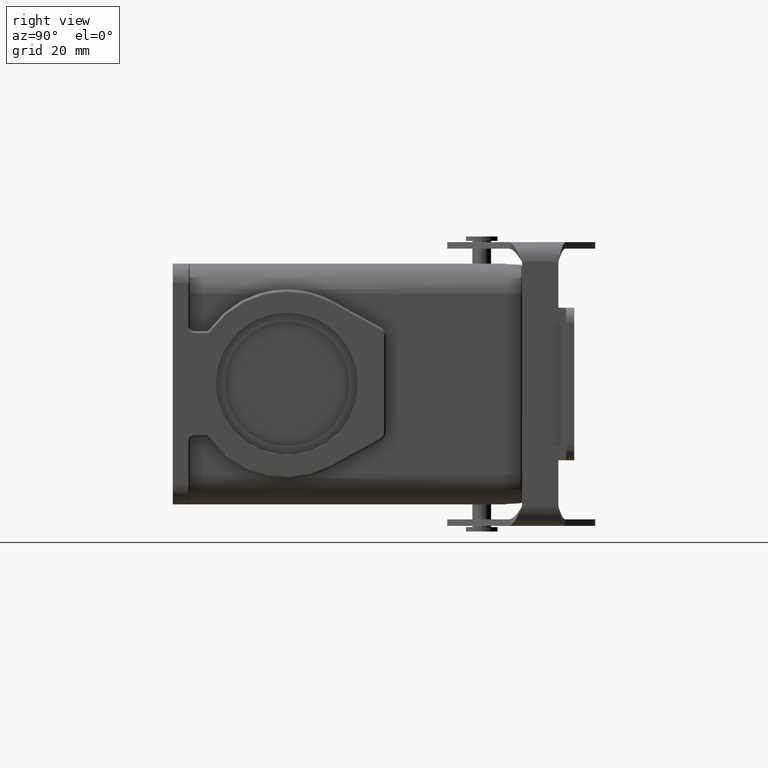
[diagram: clean part render]
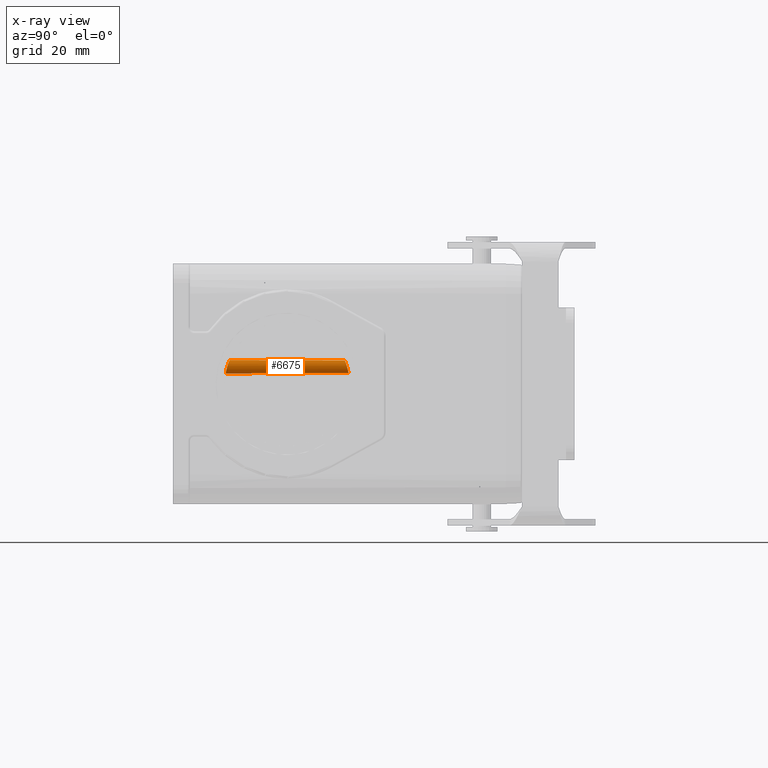
[diagram: x-ray — body ghosted, one internal face saturated and labeled with its STEP entity id]
A machine part, right view, then the same camera in x-ray: the body is ghosted and one INTERNAL B-rep face — a face not visible from any outside direction — is saturated and labeled: STEP entity #6675.
In plain terms, the highlighted cylindrical surface (edge-blend (fillet) strip) has radius 1.75 mm, axis along (0, 1, 0).
Its self-contained STEP definition (entity closure, byte-faithful):
#6610=CARTESIAN_POINT('',(3.390368962511E1,3.990224071637E1,2.501385619492E0));
#6611=CARTESIAN_POINT('',(3.387043298421E1,3.037495358937E1,2.481331306828E0));
#6612=CARTESIAN_POINT('',(3.383717633303E1,2.084766351894E1,2.462782505186E0));
#6613=CARTESIAN_POINT('',(3.380391967265E1,1.132037081110E1,2.445582694407E0));
#6615=CARTESIAN_POINT('',(3.380705215340E1,1.221775679828E1,5.552793232112E0));
#6616=CARTESIAN_POINT('',(3.383825683962E1,2.115720459656E1,5.536574840193E0));
#6617=CARTESIAN_POINT('',(3.386946151770E1,3.009665006516E1,5.519164658706E0));
#6618=CARTESIAN_POINT('',(3.390066618677E1,3.903609295137E1,5.500433410721E0));
#6620=CARTESIAN_POINT('',(3.390368962511E1,3.990224071604E1,2.501385619492E0));
#6621=CARTESIAN_POINT('',(3.404855174155E1,3.988643999587E1,2.588739907161E0));
#6622=CARTESIAN_POINT('',(3.430395586856E1,3.984766177714E1,2.796801594860E0));
#6623=CARTESIAN_POINT('',(3.459965853149E1,3.975593872261E1,3.228750141076E0));
#6624=CARTESIAN_POINT('',(3.475421615335E1,3.963338019320E1,3.725461822247E0));
#6625=CARTESIAN_POINT('',(3.475823088190E1,3.948280596514E1,4.252463425080E0));
#6626=CARTESIAN_POINT('',(3.460560981715E1,3.931640775394E1,4.761598070856E0));
#6627=CARTESIAN_POINT('',(3.430558419343E1,3.915505798067E1,5.202360484023E0));
#6628=CARTESIAN_POINT('',(3.404744245160E1,3.907169236825E1,5.412327922118E0));
#6629=CARTESIAN_POINT('',(3.390066618677E1,3.903609295100E1,5.500433410714E0));
#6631=CARTESIAN_POINT('',(3.380705215336E1,1.221775679828E1,5.552793232111E0));
#6632=CARTESIAN_POINT('',(3.396848749999E1,1.218241998299E1,5.468888471684E0));
#6633=CARTESIAN_POINT('',(3.425306640846E1,1.209699704436E1,5.261409813050E0));
#6634=CARTESIAN_POINT('',(3.458925604598E1,1.192487093962E1,4.803265067588E0));
#6635=CARTESIAN_POINT('',(3.476003387306E1,1.174612673565E1,4.263754626506E0));
#6636=CARTESIAN_POINT('',(3.475389993957E1,1.158618631749E1,3.702873979738E0));
#6637=CARTESIAN_POINT('',(3.457807329941E1,1.145947255948E1,3.178101966356E0));
#6638=CARTESIAN_POINT('',(3.424499565020E1,1.136901251215E1,2.731752164729E0));
#6639=CARTESIAN_POINT('',(3.396312494390E1,1.133390074588E1,2.527921104509E0));
#6640=CARTESIAN_POINT('',(3.380391967260E1,1.132037081110E1,2.445582694405E0));
#6642=VERTEX_POINT('',#6631);
#6643=VERTEX_POINT('',#6640);
#6644=VERTEX_POINT('',#6620);
#6645=VERTEX_POINT('',#6629);
#6662=CARTESIAN_POINT('',(3.3E1,1.074873341298E1,4.E0));
#6663=DIRECTION('',(0.E0,1.E0,0.E0));
#6664=DIRECTION('',(-1.E0,0.E0,0.E0));
#6665=AXIS2_PLACEMENT_3D('',#6662,#6663,#6664);
#6666=CYLINDRICAL_SURFACE('',#6665,1.75E0);
#6668=ORIENTED_EDGE('',*,*,#6667,.F.);
#6669=ORIENTED_EDGE('',*,*,#6651,.T.);
#6671=ORIENTED_EDGE('',*,*,#6670,.F.);
#6672=ORIENTED_EDGE('',*,*,#6655,.T.);
#6673=EDGE_LOOP('',(#6668,#6669,#6671,#6672));
#6674=FACE_OUTER_BOUND('',#6673,.F.);
#6675=ADVANCED_FACE('',(#6674),#6666,.T.);
#6614=B_SPLINE_CURVE_WITH_KNOTS('',3,(#6610,#6611,#6612,#6613),.UNSPECIFIED.,
.F.,.F.,(4,4),(0.E0,1.E0),.UNSPECIFIED.);
#6619=B_SPLINE_CURVE_WITH_KNOTS('',3,(#6615,#6616,#6617,#6618),.UNSPECIFIED.,
.F.,.F.,(4,4),(0.E0,1.E0),.UNSPECIFIED.);
#6630=B_SPLINE_CURVE_WITH_KNOTS('',3,(#6620,#6621,#6622,#6623,#6624,#6625,#6626,
#6627,#6628,#6629),.UNSPECIFIED.,.F.,.F.,(4,1,1,1,1,1,1,4),(0.E0,
1.428571428571E-1,2.857142857143E-1,4.285714285714E-1,5.714285714286E-1,
7.142857142857E-1,8.571428571429E-1,1.E0),.UNSPECIFIED.);
#6641=B_SPLINE_CURVE_WITH_KNOTS('',3,(#6631,#6632,#6633,#6634,#6635,#6636,#6637,
#6638,#6639,#6640),.UNSPECIFIED.,.F.,.F.,(4,1,1,1,1,1,1,4),(0.E0,
1.428571428571E-1,2.857142857143E-1,4.285714285714E-1,5.714285714286E-1,
7.142857142857E-1,8.571428571429E-1,1.E0),.UNSPECIFIED.);
#6651=EDGE_CURVE('',#6644,#6643,#6614,.T.);
#6655=EDGE_CURVE('',#6642,#6645,#6619,.T.);
#6667=EDGE_CURVE('',#6644,#6645,#6630,.T.);
#6670=EDGE_CURVE('',#6642,#6643,#6641,.T.);